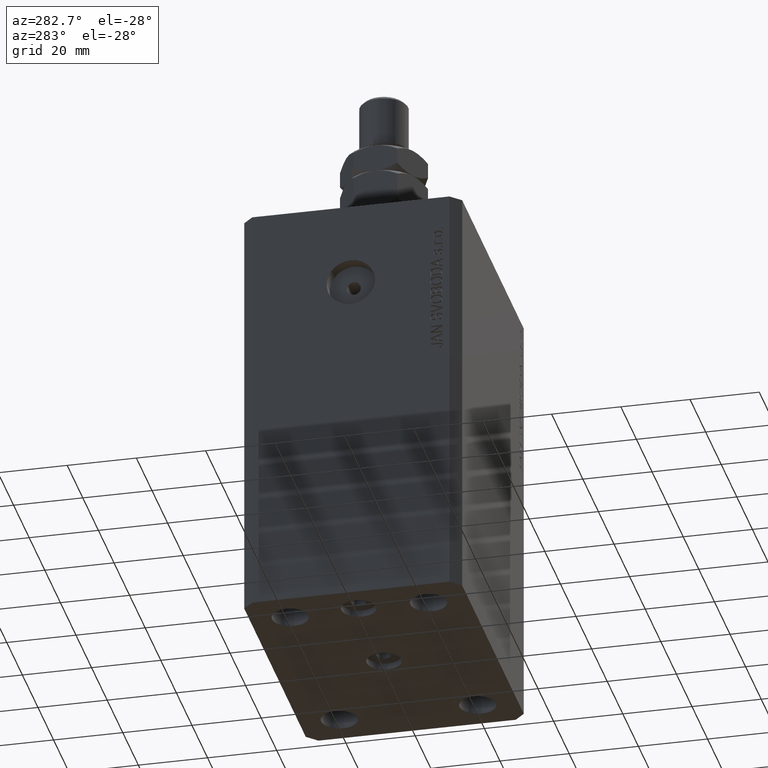
[diagram: clean part render]
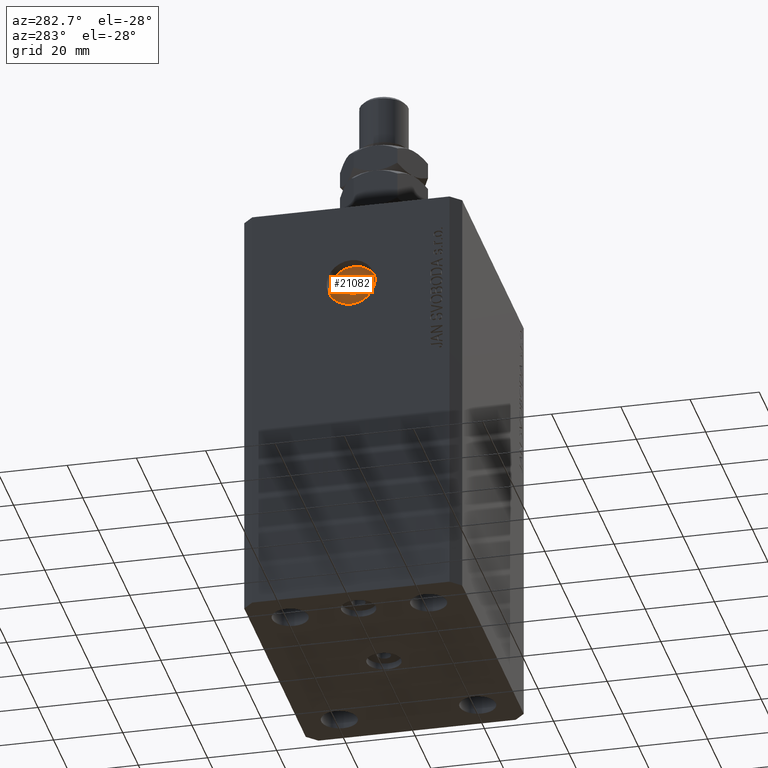
[diagram: same view with one face highlighted and labeled with its STEP entity id]
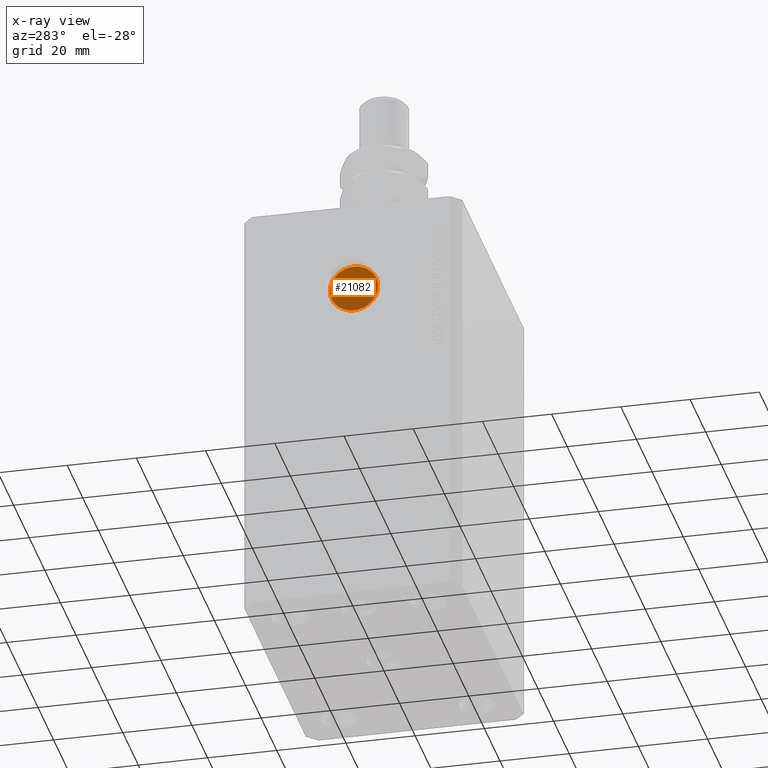
[diagram: x-ray of the same camera — body ghosted, the highlighted face saturated]
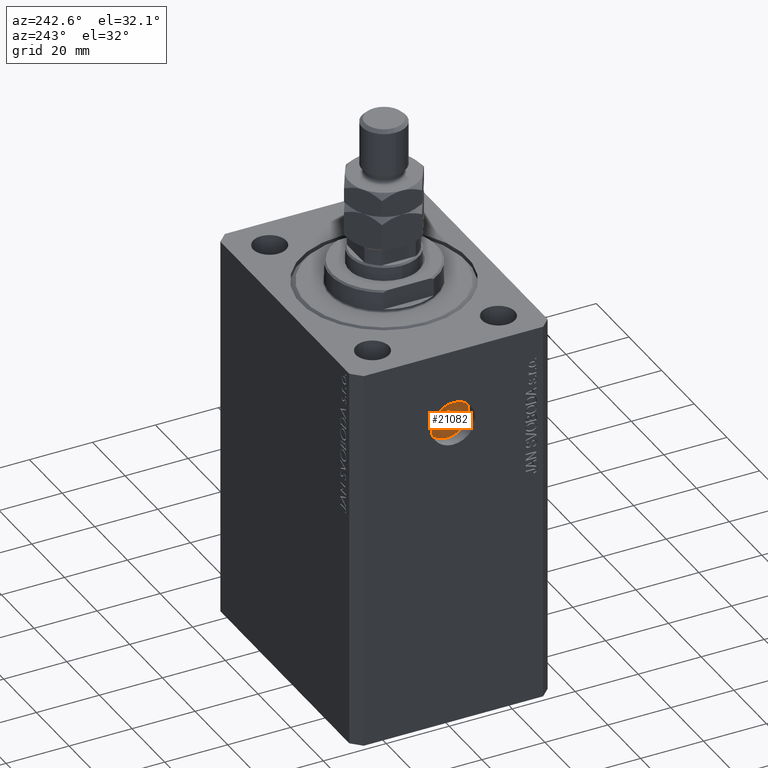
[diagram: same view with one face highlighted and labeled with its STEP entity id]
A machine part, auxiliary view. The second image highlights one B-rep face of the part: STEP entity #21082.
The next image is the same camera in x-ray: the body ghosted, the highlighted face saturated — about 0% of this face is hidden behind the body in this view.
A second angle (auxiliary view) of the same face is appended — the face is thin or edge-on in the first view.
In plain terms, the highlighted planar face has unit normal (-1, 0, 0).
Its self-contained STEP definition (entity closure, byte-faithful):
#4172 = CIRCLE ( 'NONE', #19071, 6.999999999999999112 ) ;
#7125 = AXIS2_PLACEMENT_3D ( 'NONE', #34452, #19983, #41895 ) ;
#8054 = VERTEX_POINT ( 'NONE', #20352 ) ;
#12655 = EDGE_CURVE ( 'NONE', #42722, #41684, #37515, .T. ) ;
#16138 = AXIS2_PLACEMENT_3D ( 'NONE', #28708, #42466, #39902 ) ;
#17340 = CARTESIAN_POINT ( 'NONE',  ( -38.50000000000000711, 0.000000000000000000, -23.99999999999999645 ) ) ;
#17791 = DIRECTION ( 'NONE',  ( 0.000000000000000000, 0.000000000000000000, 1.000000000000000000 ) ) ;
#19071 = AXIS2_PLACEMENT_3D ( 'NONE', #24780, #21278, #17791 ) ;
#19983 = DIRECTION ( 'NONE',  ( -1.000000000000000000, 0.000000000000000000, 0.000000000000000000 ) ) ;
#20352 = CARTESIAN_POINT ( 'NONE',  ( -38.50000000000000711, 0.000000000000000000, -16.99999999999999645 ) ) ;
#21082 = ADVANCED_FACE ( 'NONE', ( #32879, #32182 ), #28915, .T. ) ;
#21278 = DIRECTION ( 'NONE',  ( -1.000000000000000000, 0.000000000000000000, 0.000000000000000000 ) ) ;
#21490 = ORIENTED_EDGE ( 'NONE', *, *, #24715, .T. ) ;
#22277 = CARTESIAN_POINT ( 'NONE',  ( -38.50000000000000711, 0.000000000000000000, -22.00000000000000000 ) ) ;
#23852 = EDGE_LOOP ( 'NONE', ( #33303, #35717 ) ) ;
#24252 = AXIS2_PLACEMENT_3D ( 'NONE', #39172, #42665, #42901 ) ;
#24715 = EDGE_CURVE ( 'NONE', #40854, #8054, #4172, .T. ) ;
#24780 = CARTESIAN_POINT ( 'NONE',  ( -38.50000000000000711, 0.000000000000000000, -23.99999999999999645 ) ) ;
#25056 = CIRCLE ( 'NONE', #16138, 6.999999999999999112 ) ;
#25567 = EDGE_CURVE ( 'NONE', #8054, #40854, #25056, .T. ) ;
#28708 = CARTESIAN_POINT ( 'NONE',  ( -38.50000000000000711, 0.000000000000000000, -23.99999999999999645 ) ) ;
#28915 = PLANE ( 'NONE',  #24252 ) ;
#32182 = FACE_OUTER_BOUND ( 'NONE', #39881, .T. ) ;
#32879 = FACE_BOUND ( 'NONE', #23852, .T. ) ;
#33303 = ORIENTED_EDGE ( 'NONE', *, *, #12655, .F. ) ;
#34452 = CARTESIAN_POINT ( 'NONE',  ( -38.50000000000000711, 0.000000000000000000, -23.99999999999999645 ) ) ;
#35717 = ORIENTED_EDGE ( 'NONE', *, *, #42474, .F. ) ;
#36955 = CIRCLE ( 'NONE', #7125, 1.999999999999998224 ) ;
#37515 = CIRCLE ( 'NONE', #43485, 1.999999999999998224 ) ;
#38778 = ORIENTED_EDGE ( 'NONE', *, *, #25567, .T. ) ;
#39172 = CARTESIAN_POINT ( 'NONE',  ( -38.50000000000000711, 0.000000000000000000, -23.99999999999999645 ) ) ;
#39881 = EDGE_LOOP ( 'NONE', ( #38778, #21490 ) ) ;
#39902 = DIRECTION ( 'NONE',  ( 0.000000000000000000, 0.000000000000000000, 1.000000000000000000 ) ) ;
#40854 = VERTEX_POINT ( 'NONE', #40913 ) ;
#40913 = CARTESIAN_POINT ( 'NONE',  ( -38.50000000000000711, 8.572527594031474176E-16, -31.00000000000000000 ) ) ;
#41684 = VERTEX_POINT ( 'NONE', #44942 ) ;
#41895 = DIRECTION ( 'NONE',  ( 0.000000000000000000, 0.000000000000000000, 1.000000000000000000 ) ) ;
#42059 = DIRECTION ( 'NONE',  ( -1.000000000000000000, 0.000000000000000000, 0.000000000000000000 ) ) ;
#42466 = DIRECTION ( 'NONE',  ( -1.000000000000000000, 0.000000000000000000, 0.000000000000000000 ) ) ;
#42474 = EDGE_CURVE ( 'NONE', #41684, #42722, #36955, .T. ) ;
#42665 = DIRECTION ( 'NONE',  ( -1.000000000000000000, 0.000000000000000000, 0.000000000000000000 ) ) ;
#42722 = VERTEX_POINT ( 'NONE', #22277 ) ;
#42901 = DIRECTION ( 'NONE',  ( 0.000000000000000000, 0.000000000000000000, 1.000000000000000000 ) ) ;
#43485 = AXIS2_PLACEMENT_3D ( 'NONE', #17340, #42059, #45359 ) ;
#44942 = CARTESIAN_POINT ( 'NONE',  ( -38.50000000000000711, 2.449293598294705921E-16, -25.99999999999999645 ) ) ;
#45359 = DIRECTION ( 'NONE',  ( 0.000000000000000000, 0.000000000000000000, 1.000000000000000000 ) ) ;